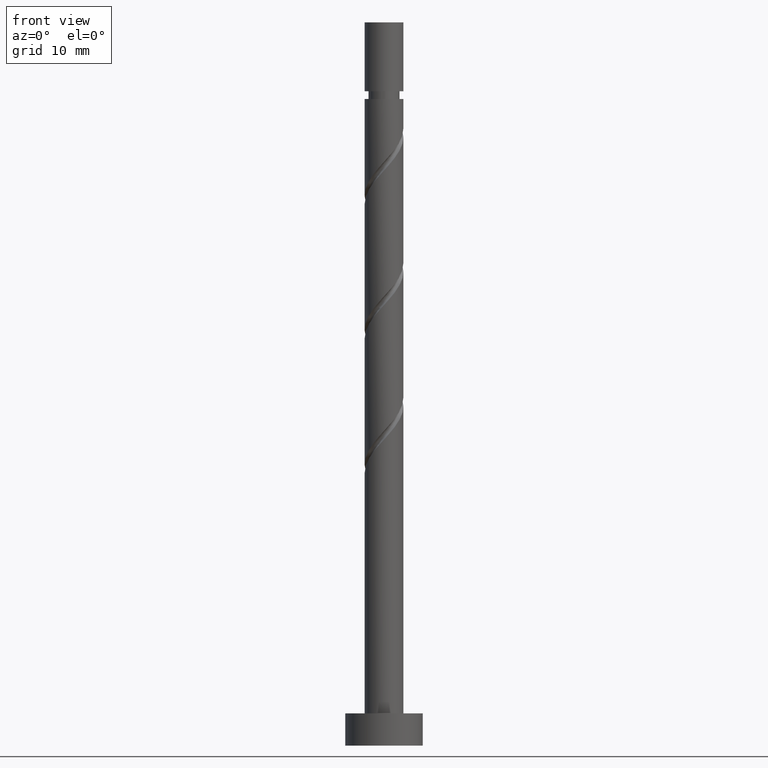
[diagram: clean part render]
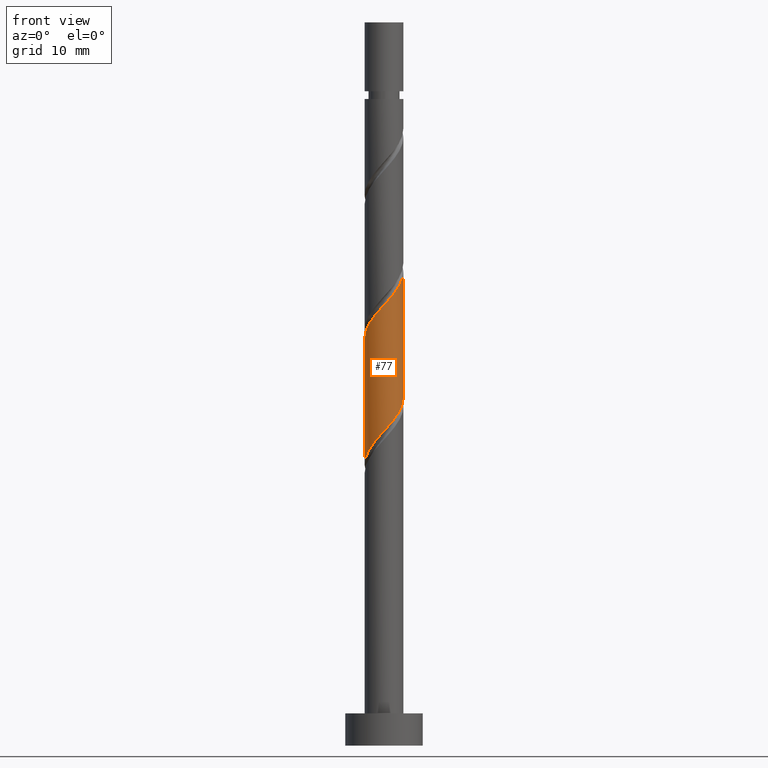
[diagram: same view with one face highlighted and labeled with its STEP entity id]
A machine part, front view. The second image highlights one B-rep face of the part: STEP entity #77.
In plain terms, the highlighted cylindrical surface (edge-blend (fillet) strip) has radius 3 mm, axis along (-0, -0, -1).
Its self-contained STEP definition (entity closure, byte-faithful):
#6 = CARTESIAN_POINT ( 'NONE',  ( 0.3407363920471074836, -2.980586974261064004, 49.10233916454513547 ) ) ;
#35 = CARTESIAN_POINT ( 'NONE',  ( -2.729413328510879477, -1.245111594254574738, 44.93567249787847828 ) ) ;
#66 = CARTESIAN_POINT ( 'NONE',  ( 2.211065689225170772, -2.027606598413817185, 70.97733916454514258 ) ) ;
#70 = EDGE_CURVE ( 'NONE', #690, #311, #344, .T. ) ;
#77 = ADVANCED_FACE ( 'NONE', ( #573 ), #556, .T. ) ;
#82 = DIRECTION ( 'NONE',  ( -1.000000000000000000, 0.000000000000000000, 0.000000000000000000 ) ) ;
#123 = CARTESIAN_POINT ( 'NONE',  ( -0.5969924622639709577, -2.940000000000001279, 48.06067249787847118 ) ) ;
#126 = ORIENTED_EDGE ( 'NONE', *, *, #1153, .F. ) ;
#161 = CARTESIAN_POINT ( 'NONE',  ( 1.889924352937061292, -2.377805000122530821, 70.45650583121178556 ) ) ;
#184 = CARTESIAN_POINT ( 'NONE',  ( 2.926619631508484698, -0.8128149918040517008, 72.53983916454512837 ) ) ;
#207 = DIRECTION ( 'NONE',  ( -0.000000000000000000, -0.000000000000000000, -1.000000000000000000 ) ) ;
#242 = CARTESIAN_POINT ( 'NONE',  ( 1.245111594254574738, -2.729413328510879477, 50.14400583121179977 ) ) ;
#287 = CARTESIAN_POINT ( 'NONE',  ( 3.000000000000005329, 6.896827280274645464E-16, 73.43753672307488500 ) ) ;
#296 = CARTESIAN_POINT ( 'NONE',  ( -1.476283534877584014, -2.611625341554440372, 47.01900583121180688 ) ) ;
#311 = VERTEX_POINT ( 'NONE', #1201 ) ;
#344 = LINE ( 'NONE', #469, #356 ) ;
#356 = VECTOR ( 'NONE', #207, 1000.000000000000000 ) ;
#366 = CARTESIAN_POINT ( 'NONE',  ( -3.000000000000000000, 1.904124053467143397E-15, 43.51714160601540016 ) ) ;
#384 = CARTESIAN_POINT ( 'NONE',  ( 2.027606598413812744, -2.211065689225168107, 51.18567249787847828 ) ) ;
#404 = CARTESIAN_POINT ( 'NONE',  ( -1.677408196705102883, -2.532207025513280474, 66.28983916454512837 ) ) ;
#421 = CARTESIAN_POINT ( 'NONE',  ( -2.027606598413817185, -2.211065689225170772, 65.76900583121178556 ) ) ;
#438 = CARTESIAN_POINT ( 'NONE',  ( 0.1313422077098330143, -3.034554317013650859, 68.37317249787847118 ) ) ;
#440 = AXIS2_PLACEMENT_3D ( 'NONE', #813, #1176, #82 ) ;
#469 = CARTESIAN_POINT ( 'NONE',  ( 3.000000000000000444, 3.673940397442060361E-16, 112.0000000000000000 ) ) ;
#494 = VECTOR ( 'NONE', #518, 1000.000000000000000 ) ;
#501 = CARTESIAN_POINT ( 'NONE',  ( 2.845445682986353031, -1.062642716818107624, 52.74817249787844986 ) ) ;
#510 = CARTESIAN_POINT ( 'NONE',  ( 2.611625341554440372, -1.476283534877584014, 52.22733916454514258 ) ) ;
#518 = DIRECTION ( 'NONE',  ( -0.000000000000000000, -0.000000000000000000, -1.000000000000000000 ) ) ;
#539 = CARTESIAN_POINT ( 'NONE',  ( -2.377805000122530821, -1.889924352937061736, 65.24817249787848539 ) ) ;
#545 =( BOUNDED_CURVE ( )  B_SPLINE_CURVE ( 2, ( #1322, #708, #952, #501, #510, #994, #384, #856, #242, #1082, #6, #968, #123, #613, #296, #1040, #568, #1547, #35, #1020, #1453, #1472, #366 ),
 .UNSPECIFIED., .F., .T. ) 
 B_SPLINE_CURVE_WITH_KNOTS ( ( 3, 2, 2, 2, 2, 2, 2, 2, 2, 2, 2, 3 ),
 ( 0.8045322023138553602, 0.8125000000000000000, 0.8249999999999999556, 0.8375000000000000222, 0.8499999999999999778, 0.8625000000000000444, 0.8750000000000000000, 0.8874999999999999556, 0.9000000000000000222, 0.9124999999999999778, 0.9250000000000000444, 0.9295322023138551382 ),
 .UNSPECIFIED. ) 
 CURVE ( )  GEOMETRIC_REPRESENTATION_ITEM ( )  RATIONAL_B_SPLINE_CURVE ( ( 0.9039174447099320719, 0.9019565955404618141, 0.9090909090909098378, 0.8978984914501261239, 0.9090909090909098378, 0.8978984914501261239, 0.9090909090909098378, 0.8978984914501261239, 0.9090909090909098378, 0.8978984914501261239, 0.9090909090909098378, 0.8978984914501261239, 0.9090909090909098378, 0.8978984914501261239, 0.9090909090909098378, 0.8978984914501261239, 0.9090909090909098378, 0.8978984914501261239, 0.9090909090909098378, 0.8978984914501261239, 0.9090909090909098378, 0.9050328050005744807, 0.9039174447099322940 ) ) 
 REPRESENTATION_ITEM ( '' )  );
#548 = CARTESIAN_POINT ( 'NONE',  ( -3.000000000000003997, -0.3015113445777697909, 63.35517463181604114 ) ) ;
#556 = CYLINDRICAL_SURFACE ( 'NONE', #440, 3.000000000000000444 ) ;
#558 = CARTESIAN_POINT ( 'NONE',  ( 2.980586974261068445, -0.3407363920471092600, 73.06067249787848539 ) ) ;
#568 = CARTESIAN_POINT ( 'NONE',  ( -2.211065689225168107, -2.027606598413812744, 45.97733916454513547 ) ) ;
#573 = FACE_OUTER_BOUND ( 'NONE', #1029, .T. ) ;
#613 = CARTESIAN_POINT ( 'NONE',  ( -1.062642716818107180, -2.845445682986353031, 47.53983916454512126 ) ) ;
#667 = ORIENTED_EDGE ( 'NONE', *, *, #1283, .F. ) ;
#669 = CARTESIAN_POINT ( 'NONE',  ( -0.3407363920471090935, -2.980586974261068445, 67.85233916454514258 ) ) ;
#680 = CARTESIAN_POINT ( 'NONE',  ( 1.476283534877584902, -2.611625341554446145, 69.93567249787848539 ) ) ;
#690 = VERTEX_POINT ( 'NONE', #1332 ) ;
#708 = CARTESIAN_POINT ( 'NONE',  ( 2.999999999999998224, -0.3015113445777684587, 53.59950369727420139 ) ) ;
#727 = ORIENTED_EDGE ( 'NONE', *, *, #1229, .T. ) ;
#768 = ORIENTED_EDGE ( 'NONE', *, *, #70, .F. ) ;
#778 = CARTESIAN_POINT ( 'NONE',  ( -3.000000000000005329, -1.079503400390813987E-15, 63.02087005640820649 ) ) ;
#813 = CARTESIAN_POINT ( 'NONE',  ( 0.000000000000000000, 0.000000000000000000, 112.0000000000000000 ) ) ;
#853 =( BOUNDED_CURVE ( )  B_SPLINE_CURVE ( 2, ( #1534, #548, #1526, #1281, #1009, #539, #421, #404, #1018, #1031, #669, #438, #1292, #893, #680, #161, #66, #1516, #913, #184, #558, #901, #287 ),
 .UNSPECIFIED., .F., .T. ) 
 B_SPLINE_CURVE_WITH_KNOTS ( ( 3, 2, 2, 2, 2, 2, 2, 2, 2, 2, 2, 3 ),
 ( 0.3045322023138554157, 0.3125000000000000000, 0.3249999999999999556, 0.3375000000000000222, 0.3499999999999999778, 0.3625000000000000444, 0.3750000000000000000, 0.3874999999999999556, 0.4000000000000000222, 0.4124999999999999778, 0.4250000000000000444, 0.4295322023138553047 ),
 .UNSPECIFIED. ) 
 CURVE ( )  GEOMETRIC_REPRESENTATION_ITEM ( )  RATIONAL_B_SPLINE_CURVE ( ( 0.9039174447099382892, 0.9019565955404680313, 0.9090909090909161661, 0.8978984914501322301, 0.9090909090909161661, 0.8978984914501322301, 0.9090909090909161661, 0.8978984914501322301, 0.9090909090909161661, 0.8978984914501322301, 0.9090909090909161661, 0.8978984914501322301, 0.9090909090909161661, 0.8978984914501322301, 0.9090909090909161661, 0.8978984914501322301, 0.9090909090909161661, 0.8978984914501322301, 0.9090909090909161661, 0.8978984914501322301, 0.9090909090909161661, 0.9050328050005804759, 0.9039174447099382892 ) ) 
 REPRESENTATION_ITEM ( '' )  );
#856 = CARTESIAN_POINT ( 'NONE',  ( 1.677408196705099330, -2.532207025513276477, 50.66483916454510705 ) ) ;
#878 = CARTESIAN_POINT ( 'NONE',  ( -3.000000000000000444, 0.000000000000000000, 112.0000000000000000 ) ) ;
#893 = CARTESIAN_POINT ( 'NONE',  ( 1.062642716818108068, -2.845445682986359248, 69.41483916454514258 ) ) ;
#901 = CARTESIAN_POINT ( 'NONE',  ( 3.000000000000005773, -0.1709212123392977456, 73.24802563386761278 ) ) ;
#913 = CARTESIAN_POINT ( 'NONE',  ( 2.729413328510882142, -1.245111594254577403, 72.01900583121179977 ) ) ;
#952 = CARTESIAN_POINT ( 'NONE',  ( 2.940000000000001279, -0.5969924622639711798, 53.26900583121180688 ) ) ;
#968 = CARTESIAN_POINT ( 'NONE',  ( -0.1313422077098341800, -3.034554317013645974, 48.58150583121179267 ) ) ;
#994 = CARTESIAN_POINT ( 'NONE',  ( 2.377805000122525936, -1.889924352937059071, 51.70650583121177846 ) ) ;
#1009 = CARTESIAN_POINT ( 'NONE',  ( -2.611625341554446145, -1.476283534877585346, 64.72733916454514258 ) ) ;
#1018 = CARTESIAN_POINT ( 'NONE',  ( -1.245111594254577403, -2.729413328510882142, 66.81067249787847118 ) ) ;
#1020 = CARTESIAN_POINT ( 'NONE',  ( -2.926619631508479813, -0.8128149918040490363, 44.41483916454513547 ) ) ;
#1029 = EDGE_LOOP ( 'NONE', ( #768, #667, #727, #126 ) ) ;
#1031 = CARTESIAN_POINT ( 'NONE',  ( -0.8128149918040517008, -2.926619631508484698, 67.33150583121181398 ) ) ;
#1040 = CARTESIAN_POINT ( 'NONE',  ( -1.889924352937059071, -2.377805000122525936, 46.49817249787844986 ) ) ;
#1082 = CARTESIAN_POINT ( 'NONE',  ( 0.8128149918040487032, -2.926619631508479813, 49.62317249787845697 ) ) ;
#1092 = VERTEX_POINT ( 'NONE', #1552 ) ;
#1153 = EDGE_CURVE ( 'NONE', #311, #1092, #545, .T. ) ;
#1176 = DIRECTION ( 'NONE',  ( -0.000000000000000000, -0.000000000000000000, -1.000000000000000000 ) ) ;
#1201 = CARTESIAN_POINT ( 'NONE',  ( 3.000000000000000000, -2.308937828613701205E-15, 53.93380827268205735 ) ) ;
#1229 = EDGE_CURVE ( 'NONE', #1284, #1092, #1230, .T. ) ;
#1230 = LINE ( 'NONE', #878, #494 ) ;
#1281 = CARTESIAN_POINT ( 'NONE',  ( -2.845445682986359248, -1.062642716818108291, 64.20650583121179977 ) ) ;
#1283 = EDGE_CURVE ( 'NONE', #1284, #690, #853, .T. ) ;
#1284 = VERTEX_POINT ( 'NONE', #778 ) ;
#1292 = CARTESIAN_POINT ( 'NONE',  ( 0.5969924622639705136, -2.940000000000005720, 68.89400583121179977 ) ) ;
#1322 = CARTESIAN_POINT ( 'NONE',  ( 3.000000000000000444, -2.308937828613701205E-15, 53.93380827268205735 ) ) ;
#1332 = CARTESIAN_POINT ( 'NONE',  ( 3.000000000000005329, 6.896827280274645464E-16, 73.43753672307488500 ) ) ;
#1453 = CARTESIAN_POINT ( 'NONE',  ( -2.980586974261064004, -0.3407363920471077057, 43.89400583121179977 ) ) ;
#1472 = CARTESIAN_POINT ( 'NONE',  ( -2.999999999999999556, -0.1709212123393025196, 43.70665269522267948 ) ) ;
#1516 = CARTESIAN_POINT ( 'NONE',  ( 2.532207025513280474, -1.677408196705102883, 71.49817249787847118 ) ) ;
#1526 = CARTESIAN_POINT ( 'NONE',  ( -2.940000000000005720, -0.5969924622639707357, 63.68567249787845697 ) ) ;
#1534 = CARTESIAN_POINT ( 'NONE',  ( -3.000000000000005329, -1.079503400390813987E-15, 63.02087005640820649 ) ) ;
#1547 = CARTESIAN_POINT ( 'NONE',  ( -2.532207025513276477, -1.677408196705099330, 45.45650583121177846 ) ) ;
#1552 = CARTESIAN_POINT ( 'NONE',  ( -3.000000000000000000, 1.904124053467143397E-15, 43.51714160601540016 ) ) ;